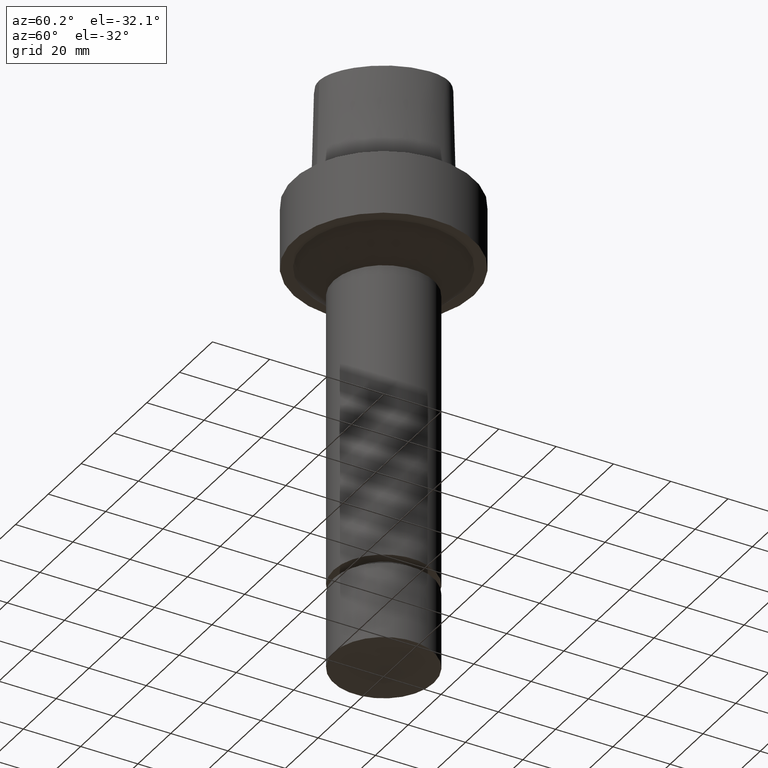
[diagram: clean part render]
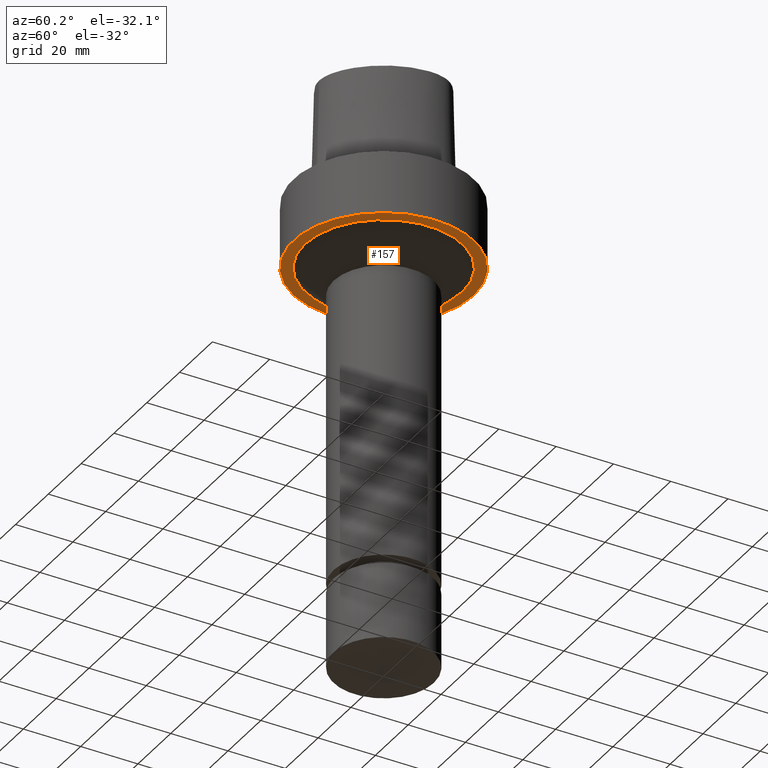
[diagram: same view with one face highlighted and labeled with its STEP entity id]
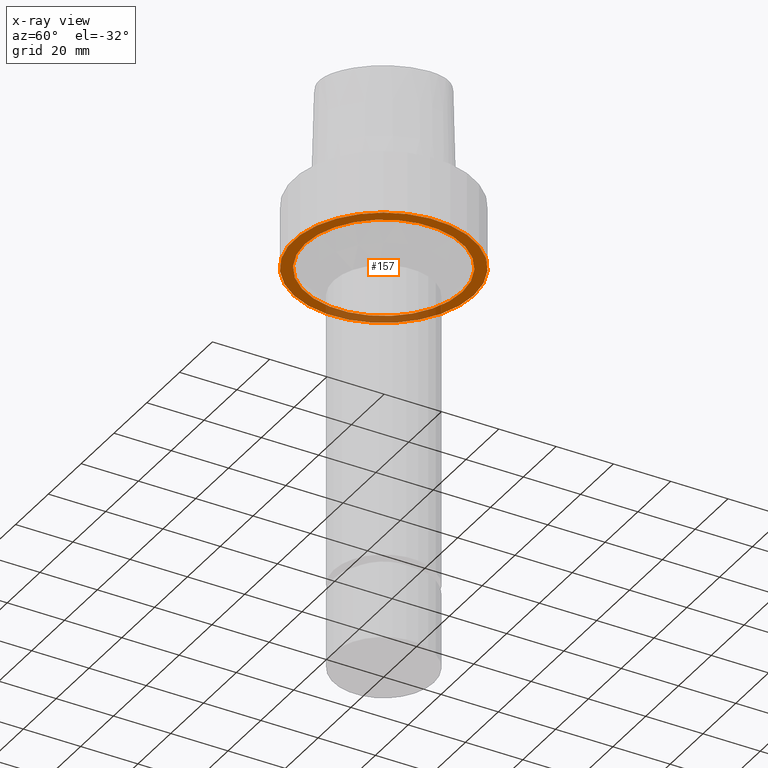
[diagram: x-ray of the same camera — body ghosted, the highlighted face saturated]
A machine part, auxiliary view. The second image highlights one B-rep face of the part: STEP entity #157.
The next image is the same camera in x-ray: the body ghosted, the highlighted face saturated — about 20% of this face is hidden behind the body in this view.
In plain terms, the highlighted planar face has unit normal (0, -0, -1).
Its self-contained STEP definition (entity closure, byte-faithful):
#75=EDGE_CURVE('Unnamed[1]',#195,#195,#196,.T.);
#98=EDGE_CURVE('Unnamed[1]',#231,#231,#232,.T.);
#157=ADVANCED_FACE('Unnamed[1]',(#314,#315),#316,.T.);
#195=VERTEX_POINT('',#354);
#196=CIRCLE('',#355,31.5);
#231=VERTEX_POINT('',#399);
#232=CIRCLE('',#400,27.4999999999996);
#314=FACE_BOUND('',#622,.T.);
#315=FACE_OUTER_BOUND('',#623,.T.);
#316=PLANE('',#624);
#354=CARTESIAN_POINT('',(1.34711147906212E-015,31.5,-22.0000000000006));
#355=AXIS2_PLACEMENT_3D('',#740,#741,#742);
#399=CARTESIAN_POINT('',(1.34711147906211E-015,27.4999999999996,-22.0000000000003));
#400=AXIS2_PLACEMENT_3D('',#777,#778,#779);
#622=EDGE_LOOP('',(#859));
#623=EDGE_LOOP('',(#860));
#624=AXIS2_PLACEMENT_3D('',#861,#862,#863);
#740=CARTESIAN_POINT('',(1.34711147906212E-015,2.69422295812425E-015,-22.0000000000006));
#741=DIRECTION('',(6.12323399573677E-017,1.22464679914735E-016,-1.0));
#742=DIRECTION('',(-1.23259516440783E-032,1.0,1.22464679914735E-016));
#777=CARTESIAN_POINT('',(1.34711147906211E-015,2.69422295812421E-015,-22.0000000000003));
#778=DIRECTION('',(6.12323399573677E-017,1.22464679914735E-016,-1.0));
#779=DIRECTION('',(-1.23259516440783E-032,1.0,1.22464679914735E-016));
#859=ORIENTED_EDGE('',*,*,#98,.F.);
#860=ORIENTED_EDGE('',*,*,#75,.T.);
#861=CARTESIAN_POINT('',(1.34711147906211E-015,29.4999999999998,-22.0000000000004));
#862=DIRECTION('',(6.12323399573677E-017,-7.18199873157875E-014,-1.0));
#863=DIRECTION('',(4.39287872632336E-030,1.0,-7.18199873157875E-014));